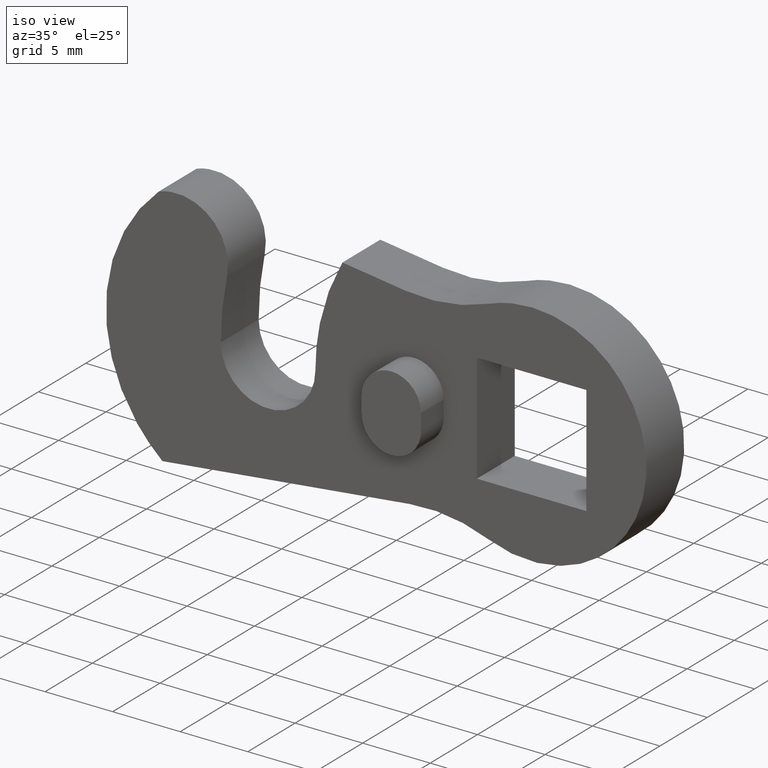
[diagram: clean part render]
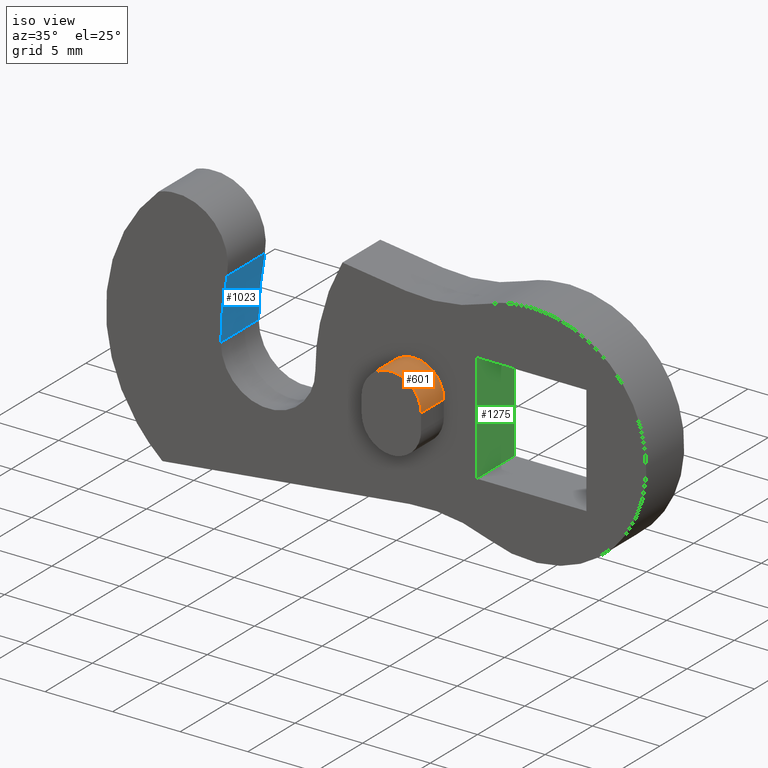
[diagram: same view with three faces highlighted in distinct colors, each labeled with its STEP entity id]
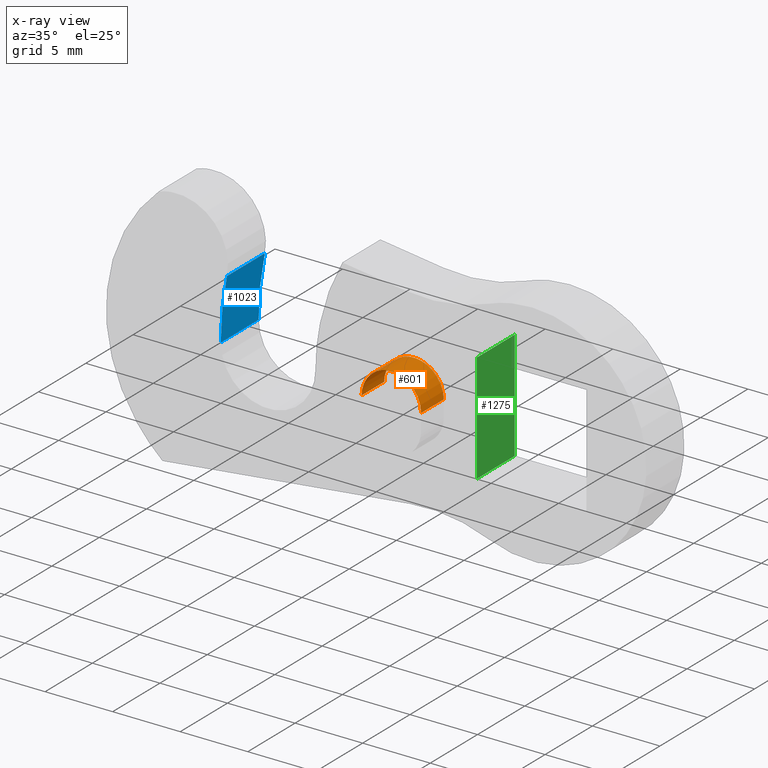
[diagram: x-ray of the same camera — body ghosted, the three highlighted faces saturated]
A machine part, iso view with three faces highlighted in distinct colors.
The next image is the same camera in x-ray (body ghosted, the three faces saturated) — at least one of them is partly hidden behind the body in this view.
Their STEP definitions:

[orange] entity #601 — the highlighted face is a freeform B-spline surface patch.
#435=CARTESIAN_POINT('',(-6.500000308733430,-2.400000113993885,0.600000028498457));
#436=VERTEX_POINT('',#435);
#442=CARTESIAN_POINT('',(-10.900000517722200,-2.400000113993885,0.600000028498457));
#443=VERTEX_POINT('',#442);
#444=CARTESIAN_POINT('',(-6.500000308733426,-2.400000113993885,0.600000028498457));
#445=CARTESIAN_POINT('',(-6.500000308733426,-2.400000113993885,2.800000132992842));
#446=CARTESIAN_POINT('',(-8.700000413227810,-2.400000113993885,2.800000132992842));
#447=CARTESIAN_POINT('',(-10.900000517722194,-2.400000113993885,2.800000132992842));
#448=CARTESIAN_POINT('',(-10.900000517722191,-2.400000113993885,0.600000028498457));
#456=(BOUNDED_CURVE()B_SPLINE_CURVE(2,(#444,#445,#446,#447,#448),.UNSPECIFIED.,.F.,.U.)B_SPLINE_CURVE_WITH_KNOTS((3,2,3),(0.0,0.500000000000000,1.0),.UNSPECIFIED.)CURVE()GEOMETRIC_REPRESENTATION_ITEM()RATIONAL_B_SPLINE_CURVE((1.0,0.707106781186547,1.0,0.707106781186547,1.0))REPRESENTATION_ITEM(''));
#457=EDGE_CURVE('',#436,#443,#456,.T.);
#540=CARTESIAN_POINT('',(-10.900000517722200,0.0,0.600000028498457));
#541=VERTEX_POINT('',#540);
#549=CARTESIAN_POINT('',(-10.900000517722200,-2.400000113993885,0.600000028498457));
#550=CARTESIAN_POINT('',(-10.900000517722200,0.0,0.600000028498457));
#551=QUASI_UNIFORM_CURVE('',1,(#549,#550),.UNSPECIFIED.,.F.,.U.);
#552=EDGE_CURVE('',#443,#541,#551,.T.);
#557=CARTESIAN_POINT('',(-6.500754193823008,-2.460000116843732,0.542410739485789));
#558=CARTESIAN_POINT('',(-6.500754193823008,0.061500002921093,0.542410739485789));
#559=CARTESIAN_POINT('',(-6.440595637689409,-2.460000116843732,2.839773311761500));
#560=CARTESIAN_POINT('',(-6.440595637689409,0.061500002921093,2.839773311761500));
#561=CARTESIAN_POINT('',(-8.738395709213510,-2.460000116843732,2.799665062320986));
#562=CARTESIAN_POINT('',(-8.738395709213510,0.061500002921093,2.799665062320986));
#563=CARTESIAN_POINT('',(-11.036195780737611,-2.460000116843732,2.759556812880473));
#564=CARTESIAN_POINT('',(-11.036195780737611,0.061500002921093,2.759556812880473));
#565=CARTESIAN_POINT('',(-10.895897074055400,-2.460000116843732,0.465693235142545));
#566=CARTESIAN_POINT('',(-10.895897074055400,0.061500002921093,0.465693235142545));
#574=(BOUNDED_SURFACE()B_SPLINE_SURFACE(1,2,((#557,#559,#561,#563,#565),(#558,#560,#562,#564,#566)),.UNSPECIFIED.,.F.,.F.,.U.)B_SPLINE_SURFACE_WITH_KNOTS((2,2),(3,2,3),(0.0,2.521500119764825),(0.0,3.758057406845107,7.516114813690213),.UNSPECIFIED.)GEOMETRIC_REPRESENTATION_ITEM()RATIONAL_B_SPLINE_SURFACE(((1.0,0.691513055782269,1.0,0.691513055782269,1.0),(1.0,0.691513055782269,1.0,0.691513055782269,1.0)))REPRESENTATION_ITEM('')SURFACE());
#575=CARTESIAN_POINT('',(-6.500000308733430,0.0,0.600000028498457));
#576=VERTEX_POINT('',#575);
#577=CARTESIAN_POINT('',(-6.500000308733426,0.0,0.600000028498457));
#578=CARTESIAN_POINT('',(-6.500000308733426,0.0,2.800000132992842));
#579=CARTESIAN_POINT('',(-8.700000413227810,0.0,2.800000132992842));
#580=CARTESIAN_POINT('',(-10.900000517722194,0.0,2.800000132992842));
#581=CARTESIAN_POINT('',(-10.900000517722191,0.0,0.600000028498457));
#589=(BOUNDED_CURVE()B_SPLINE_CURVE(2,(#577,#578,#579,#580,#581),.UNSPECIFIED.,.F.,.U.)B_SPLINE_CURVE_WITH_KNOTS((3,2,3),(0.0,0.500000000000000,1.0),.UNSPECIFIED.)CURVE()GEOMETRIC_REPRESENTATION_ITEM()RATIONAL_B_SPLINE_CURVE((1.0,0.707106781186547,1.0,0.707106781186547,1.0))REPRESENTATION_ITEM(''));
#590=EDGE_CURVE('',#576,#541,#589,.T.);
#591=ORIENTED_EDGE('',*,*,#590,.T.);
#592=ORIENTED_EDGE('',*,*,#552,.F.);
#593=ORIENTED_EDGE('',*,*,#457,.F.);
#594=CARTESIAN_POINT('',(-6.500000308733430,-2.400000113993885,0.600000028498457));
#595=CARTESIAN_POINT('',(-6.500000308733430,0.0,0.600000028498457));
#596=QUASI_UNIFORM_CURVE('',1,(#594,#595),.UNSPECIFIED.,.F.,.U.);
#597=EDGE_CURVE('',#436,#576,#596,.T.);
#598=ORIENTED_EDGE('',*,*,#597,.T.);
#599=EDGE_LOOP('',(#591,#592,#593,#598));
#600=FACE_OUTER_BOUND('',#599,.T.);
#601=ADVANCED_FACE('',(#600),#574,.T.);

[blue] entity #1023 — the highlighted face is a freeform B-spline surface patch.
#683=CARTESIAN_POINT('',(-22.545756322395651,4.000000189989585,4.548507678729610));
#684=VERTEX_POINT('',#683);
#700=CARTESIAN_POINT('',(-23.000001092441401,4.000000189989585,-5.727203E-014));
#701=VERTEX_POINT('',#700);
#702=CARTESIAN_POINT('',(-22.545756322395640,4.000000189989585,4.548507678729605));
#703=CARTESIAN_POINT('',(-23.000001092441394,4.000000189989585,2.296935818344305));
#704=CARTESIAN_POINT('',(-23.000001092441401,4.000000189989585,-5.727203E-014));
#712=(BOUNDED_CURVE()B_SPLINE_CURVE(2,(#702,#703,#704),.UNSPECIFIED.,.F.,.U.)CURVE()GEOMETRIC_REPRESENTATION_ITEM()QUASI_UNIFORM_CURVE()RATIONAL_B_SPLINE_CURVE((1.0,0.995050307353196,1.0))REPRESENTATION_ITEM(''));
#713=EDGE_CURVE('',#684,#701,#712,.T.);
#958=CARTESIAN_POINT('',(-22.545756322395651,0.0,4.548507678729610));
#959=VERTEX_POINT('',#958);
#975=CARTESIAN_POINT('',(-22.545756322395651,4.000000189989585,4.548507678729610));
#976=CARTESIAN_POINT('',(-22.545756322395651,0.0,4.548507678729610));
#977=QUASI_UNIFORM_CURVE('',1,(#975,#976),.UNSPECIFIED.,.F.,.U.);
#978=EDGE_CURVE('',#684,#959,#977,.T.);
#985=CARTESIAN_POINT('',(-22.998870823290002,4.100000194739325,-0.228015582635079));
#986=CARTESIAN_POINT('',(-22.998870823290002,-0.102500004868483,-0.228015582635079));
#987=CARTESIAN_POINT('',(-23.023929920217412,4.100000194739325,2.299578919992110));
#988=CARTESIAN_POINT('',(-23.023929920217412,-0.102500004868483,2.299578919992110));
#989=CARTESIAN_POINT('',(-22.499451734861875,4.100000194739325,4.772286860921684));
#990=CARTESIAN_POINT('',(-22.499451734861875,-0.102500004868483,4.772286860921684));
#998=(BOUNDED_SURFACE()B_SPLINE_SURFACE(1,2,((#985,#987,#989),(#986,#988,#990)),.UNSPECIFIED.,.F.,.F.,.U.)B_SPLINE_SURFACE_WITH_KNOTS((2,2),(3,3),(0.0,4.202500199607808),(0.615723170807958,5.656543634364009),.UNSPECIFIED.)GEOMETRIC_REPRESENTATION_ITEM()RATIONAL_B_SPLINE_SURFACE(((0.998084142952575,0.990970631214479,0.995791642022958),(0.998084142952575,0.990970631214479,0.995791642022958)))REPRESENTATION_ITEM('')SURFACE());
#999=CARTESIAN_POINT('',(-23.000001092441401,0.0,-5.727203E-014));
#1000=VERTEX_POINT('',#999);
#1001=CARTESIAN_POINT('',(-22.545756322395640,0.0,4.548507678729605));
#1002=CARTESIAN_POINT('',(-23.000001092441394,0.0,2.296935818344305));
#1003=CARTESIAN_POINT('',(-23.000001092441401,0.0,-5.727203E-014));
#1011=(BOUNDED_CURVE()B_SPLINE_CURVE(2,(#1001,#1002,#1003),.UNSPECIFIED.,.F.,.U.)CURVE()GEOMETRIC_REPRESENTATION_ITEM()QUASI_UNIFORM_CURVE()RATIONAL_B_SPLINE_CURVE((1.0,0.995050307353196,1.0))REPRESENTATION_ITEM(''));
#1012=EDGE_CURVE('',#959,#1000,#1011,.T.);
#1013=ORIENTED_EDGE('',*,*,#1012,.T.);
#1014=CARTESIAN_POINT('',(-23.000001092441401,4.000000189989585,-5.727203E-014));
#1015=CARTESIAN_POINT('',(-23.000001092441401,0.0,-5.727203E-014));
#1016=QUASI_UNIFORM_CURVE('',1,(#1014,#1015),.UNSPECIFIED.,.F.,.U.);
#1017=EDGE_CURVE('',#701,#1000,#1016,.T.);
#1018=ORIENTED_EDGE('',*,*,#1017,.F.);
#1019=ORIENTED_EDGE('',*,*,#713,.F.);
#1020=ORIENTED_EDGE('',*,*,#978,.T.);
#1021=EDGE_LOOP('',(#1013,#1018,#1019,#1020));
#1022=FACE_OUTER_BOUND('',#1021,.T.);
#1023=ADVANCED_FACE('',(#1022),#998,.F.);

[green] entity #1275 — the highlighted face is a freeform B-spline surface patch.
#771=CARTESIAN_POINT('',(-4.050000192364665,4.000000189989585,-4.050000192364690));
#772=VERTEX_POINT('',#771);
#773=CARTESIAN_POINT('',(-4.050000192364665,4.000000189989585,4.050000192364680));
#774=VERTEX_POINT('',#773);
#775=CARTESIAN_POINT('',(-4.050000192364665,4.000000189989585,-4.050000192364690));
#776=CARTESIAN_POINT('',(-4.050000192364665,4.000000189989585,4.050000192364680));
#777=QUASI_UNIFORM_CURVE('',1,(#775,#776),.UNSPECIFIED.,.F.,.U.);
#778=EDGE_CURVE('',#772,#774,#777,.T.);
#815=CARTESIAN_POINT('',(-4.050000192364665,0.0,-4.050000192364690));
#816=VERTEX_POINT('',#815);
#828=CARTESIAN_POINT('',(-4.050000192364665,4.000000189989585,-4.050000192364690));
#829=CARTESIAN_POINT('',(-4.050000192364665,0.0,-4.050000192364690));
#830=QUASI_UNIFORM_CURVE('',1,(#828,#829),.UNSPECIFIED.,.F.,.U.);
#831=EDGE_CURVE('',#772,#816,#830,.T.);
#1243=CARTESIAN_POINT('',(-4.050000192364665,0.0,4.050000192364680));
#1244=VERTEX_POINT('',#1243);
#1250=CARTESIAN_POINT('',(-4.050000192364665,4.000000189989585,4.050000192364680));
#1251=CARTESIAN_POINT('',(-4.050000192364665,0.0,4.050000192364680));
#1252=QUASI_UNIFORM_CURVE('',1,(#1250,#1251),.UNSPECIFIED.,.F.,.U.);
#1253=EDGE_CURVE('',#774,#1244,#1252,.T.);
#1260=CARTESIAN_POINT('',(-4.050000192364665,-0.199799987446393,4.454595195882539));
#1261=CARTESIAN_POINT('',(-4.050000192364665,-0.199799987446393,-4.454595413141490));
#1262=CARTESIAN_POINT('',(-4.050000192364665,4.199799998622036,4.454595195882539));
#1263=CARTESIAN_POINT('',(-4.050000192364665,4.199799998622036,-4.454595413141490));
#1264=B_SPLINE_SURFACE_WITH_KNOTS('',1,1,((#1260,#1262),(#1261,#1263)),.UNSPECIFIED.,.F.,.F.,.U.,(2,2),(2,2),(0.0,8.909190609024030),(0.0,4.399599986068429),.UNSPECIFIED.);
#1265=CARTESIAN_POINT('',(-4.050000192364665,0.0,-4.050000192364690));
#1266=CARTESIAN_POINT('',(-4.050000192364665,0.0,4.050000192364680));
#1267=QUASI_UNIFORM_CURVE('',1,(#1265,#1266),.UNSPECIFIED.,.F.,.U.);
#1268=EDGE_CURVE('',#816,#1244,#1267,.T.);
#1269=ORIENTED_EDGE('',*,*,#1268,.F.);
#1270=ORIENTED_EDGE('',*,*,#831,.F.);
#1271=ORIENTED_EDGE('',*,*,#778,.T.);
#1272=ORIENTED_EDGE('',*,*,#1253,.T.);
#1273=EDGE_LOOP('',(#1269,#1270,#1271,#1272));
#1274=FACE_OUTER_BOUND('',#1273,.T.);
#1275=ADVANCED_FACE('',(#1274),#1264,.T.);